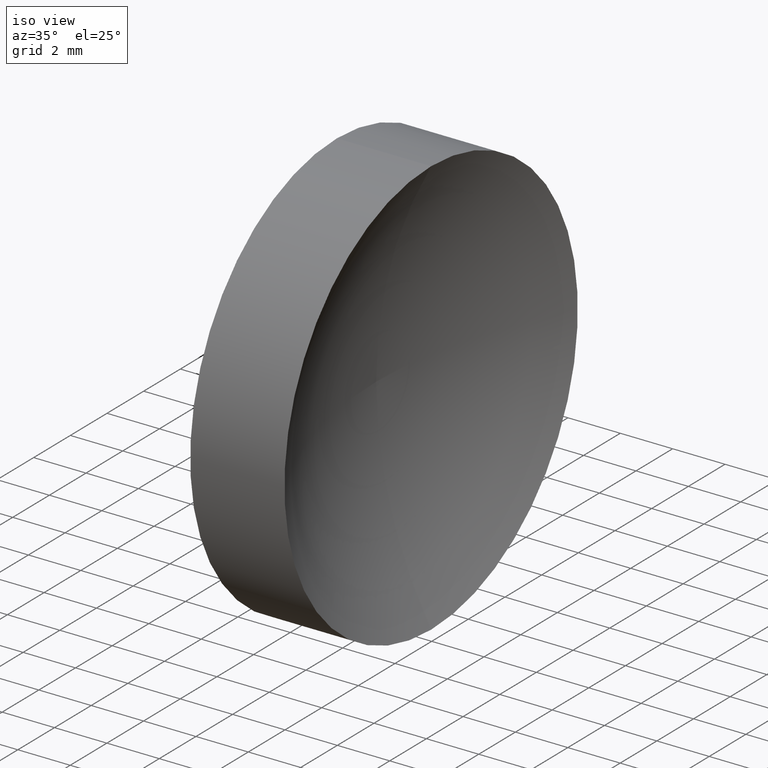
[diagram: clean part render]
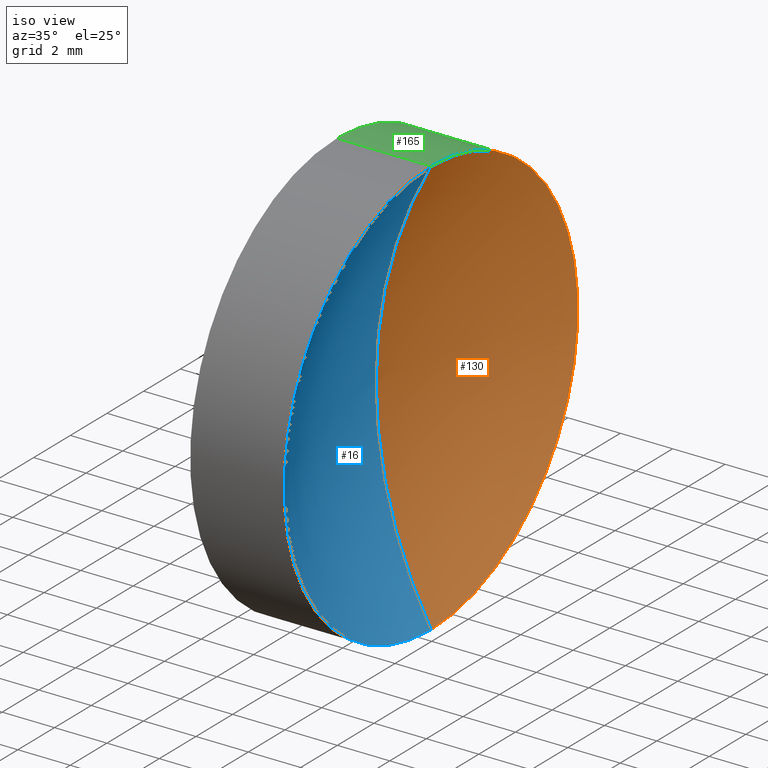
[diagram: same view with three faces highlighted in distinct colors, each labeled with its STEP entity id]
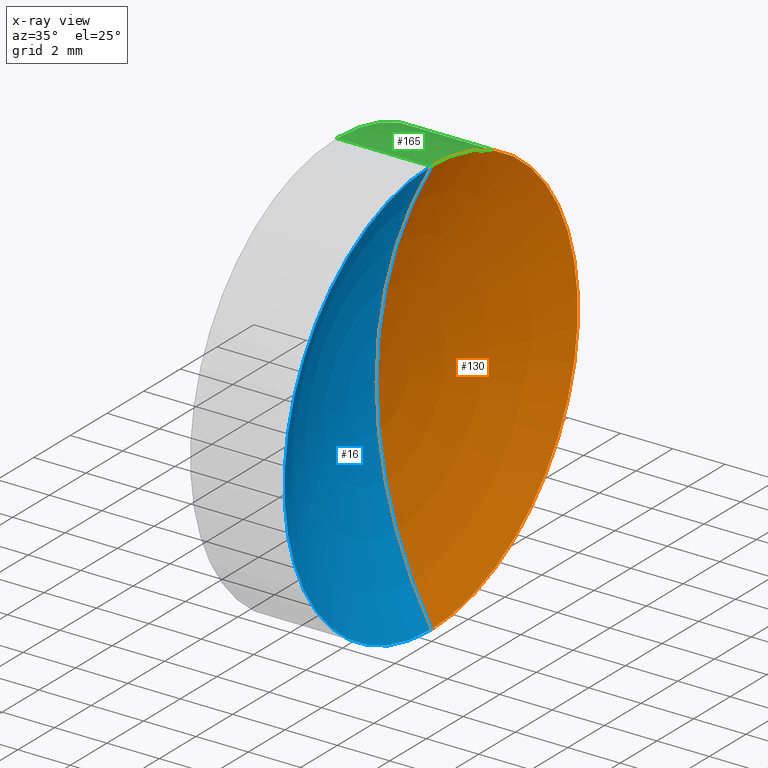
[diagram: x-ray of the same camera — body ghosted, the three highlighted faces saturated]
A machine part, iso view with three faces highlighted in distinct colors.
The next image is the same camera in x-ray (body ghosted, the three faces saturated) — at least one of them is partly hidden behind the body in this view.
Their STEP definitions:

[orange] entity #130 — the highlighted toroidal blend (fillet) surface has major radius 0.0051 mm and minor (blend) radius 16.27 mm.
#1 = CARTESIAN_POINT ( 'NONE',  ( 47.91777018609677400, 26.08904114919495900, -8.000000000000001800 ) ) ;
#2 = DIRECTION ( 'NONE',  ( 0.0000000000000000000, -2.132419761495766100E-016, 1.000000000000000000 ) ) ;
#8 = CARTESIAN_POINT ( 'NONE',  ( 47.91777018609677400, 26.08904114919495900, 8.000000000000001800 ) ) ;
#10 = DIRECTION ( 'NONE',  ( -1.000000000000000000, -0.0000000000000000000, -0.0000000000000000000 ) ) ;
#11 = EDGE_LOOP ( 'NONE', ( #97, #88, #24 ) ) ;
#24 = ORIENTED_EDGE ( 'NONE', *, *, #90, .T. ) ;
#25 = CARTESIAN_POINT ( 'NONE',  ( 47.91777018609677400, 26.08904114919495900, 0.0000000000000000000 ) ) ;
#28 = AXIS2_PLACEMENT_3D ( 'NONE', #25, #10, #161 ) ;
#30 = EDGE_CURVE ( 'NONE', #41, #118, #82, .T. ) ;
#41 = VERTEX_POINT ( 'NONE', #1 ) ;
#45 = DIRECTION ( 'NONE',  ( -1.000000000000000000, -0.0000000000000000000, -0.0000000000000000000 ) ) ;
#58 = DIRECTION ( 'NONE',  ( 0.0000000000000000000, 0.0000000000000000000, -1.000000000000000000 ) ) ;
#59 = CARTESIAN_POINT ( 'NONE',  ( 62.08794783916831500, 26.08904114919495900, 0.0000000000000000000 ) ) ;
#67 = AXIS2_PLACEMENT_3D ( 'NONE', #59, #45, #104 ) ;
#74 = AXIS2_PLACEMENT_3D ( 'NONE', #108, #156, #2 ) ;
#81 = CARTESIAN_POINT ( 'NONE',  ( 62.08794783916831500, 26.08904114919495900, 0.005066274171350304600 ) ) ;
#82 = CIRCLE ( 'NONE', #74, 16.27000000000001400 ) ;
#88 = ORIENTED_EDGE ( 'NONE', *, *, #125, .F. ) ;
#90 = EDGE_CURVE ( 'NONE', #151, #118, #112, .T. ) ;
#96 = AXIS2_PLACEMENT_3D ( 'NONE', #81, #136, #58 ) ;
#97 = ORIENTED_EDGE ( 'NONE', *, *, #30, .F. ) ;
#102 = FACE_OUTER_BOUND ( 'NONE', #11, .T. ) ;
#104 = DIRECTION ( 'NONE',  ( 0.0000000000000000000, 0.0000000000000000000, 1.000000000000000000 ) ) ;
#108 = CARTESIAN_POINT ( 'NONE',  ( 62.08794783916831500, 26.08904114919495900, -0.005066274171350304600 ) ) ;
#112 = CIRCLE ( 'NONE', #96, 16.27000000000001400 ) ;
#113 = CARTESIAN_POINT ( 'NONE',  ( 45.81794862795547400, 26.08904114919495900, 0.0000000000000000000 ) ) ;
#118 = VERTEX_POINT ( 'NONE', #113 ) ;
#125 = EDGE_CURVE ( 'NONE', #151, #41, #160, .T. ) ;
#130 = ADVANCED_FACE ( 'NONE', ( #102 ), #158, .F. ) ;
#136 = DIRECTION ( 'NONE',  ( 0.0000000000000000000, -1.000000000000000000, 0.0000000000000000000 ) ) ;
#151 = VERTEX_POINT ( 'NONE', #8 ) ;
#156 = DIRECTION ( 'NONE',  ( -0.0000000000000000000, 1.000000000000000000, 1.224646799147353200E-016 ) ) ;
#158 = TOROIDAL_SURFACE ( 'NONE', #67, 0.005066274171350304600, 16.27000000000001400 ) ;
#160 = CIRCLE ( 'NONE', #28, 8.000000000000003600 ) ;
#161 = DIRECTION ( 'NONE',  ( 0.0000000000000000000, 0.0000000000000000000, 1.000000000000000000 ) ) ;

[blue] entity #16 — the highlighted toroidal blend (fillet) surface has major radius 0.0051 mm and minor (blend) radius 16.27 mm.
#1 = CARTESIAN_POINT ( 'NONE',  ( 47.91777018609677400, 26.08904114919495900, -8.000000000000001800 ) ) ;
#2 = DIRECTION ( 'NONE',  ( 0.0000000000000000000, -2.132419761495766100E-016, 1.000000000000000000 ) ) ;
#4 = DIRECTION ( 'NONE',  ( -1.000000000000000000, -0.0000000000000000000, -0.0000000000000000000 ) ) ;
#8 = CARTESIAN_POINT ( 'NONE',  ( 47.91777018609677400, 26.08904114919495900, 8.000000000000001800 ) ) ;
#15 = ORIENTED_EDGE ( 'NONE', *, *, #23, .F. ) ;
#16 = ADVANCED_FACE ( 'NONE', ( #148 ), #17, .F. ) ;
#17 = TOROIDAL_SURFACE ( 'NONE', #44, 0.005066274171350304600, 16.27000000000001400 ) ;
#23 = EDGE_CURVE ( 'NONE', #41, #151, #46, .T. ) ;
#30 = EDGE_CURVE ( 'NONE', #41, #118, #82, .T. ) ;
#41 = VERTEX_POINT ( 'NONE', #1 ) ;
#44 = AXIS2_PLACEMENT_3D ( 'NONE', #99, #100, #140 ) ;
#46 = CIRCLE ( 'NONE', #52, 8.000000000000003600 ) ;
#52 = AXIS2_PLACEMENT_3D ( 'NONE', #68, #4, #69 ) ;
#58 = DIRECTION ( 'NONE',  ( 0.0000000000000000000, 0.0000000000000000000, -1.000000000000000000 ) ) ;
#63 = ORIENTED_EDGE ( 'NONE', *, *, #90, .F. ) ;
#68 = CARTESIAN_POINT ( 'NONE',  ( 47.91777018609677400, 26.08904114919495900, 0.0000000000000000000 ) ) ;
#69 = DIRECTION ( 'NONE',  ( 0.0000000000000000000, 0.0000000000000000000, 1.000000000000000000 ) ) ;
#74 = AXIS2_PLACEMENT_3D ( 'NONE', #108, #156, #2 ) ;
#81 = CARTESIAN_POINT ( 'NONE',  ( 62.08794783916831500, 26.08904114919495900, 0.005066274171350304600 ) ) ;
#82 = CIRCLE ( 'NONE', #74, 16.27000000000001400 ) ;
#90 = EDGE_CURVE ( 'NONE', #151, #118, #112, .T. ) ;
#96 = AXIS2_PLACEMENT_3D ( 'NONE', #81, #136, #58 ) ;
#99 = CARTESIAN_POINT ( 'NONE',  ( 62.08794783916831500, 26.08904114919495900, 0.0000000000000000000 ) ) ;
#100 = DIRECTION ( 'NONE',  ( -1.000000000000000000, -0.0000000000000000000, -0.0000000000000000000 ) ) ;
#108 = CARTESIAN_POINT ( 'NONE',  ( 62.08794783916831500, 26.08904114919495900, -0.005066274171350304600 ) ) ;
#112 = CIRCLE ( 'NONE', #96, 16.27000000000001400 ) ;
#113 = CARTESIAN_POINT ( 'NONE',  ( 45.81794862795547400, 26.08904114919495900, 0.0000000000000000000 ) ) ;
#118 = VERTEX_POINT ( 'NONE', #113 ) ;
#120 = EDGE_LOOP ( 'NONE', ( #15, #121, #63 ) ) ;
#121 = ORIENTED_EDGE ( 'NONE', *, *, #30, .T. ) ;
#136 = DIRECTION ( 'NONE',  ( 0.0000000000000000000, -1.000000000000000000, 0.0000000000000000000 ) ) ;
#140 = DIRECTION ( 'NONE',  ( 0.0000000000000000000, 0.0000000000000000000, 1.000000000000000000 ) ) ;
#148 = FACE_OUTER_BOUND ( 'NONE', #120, .T. ) ;
#151 = VERTEX_POINT ( 'NONE', #8 ) ;
#156 = DIRECTION ( 'NONE',  ( -0.0000000000000000000, 1.000000000000000000, 1.224646799147353200E-016 ) ) ;

[green] entity #165 — the highlighted cylindrical surface (partial cylindrical patch) has radius 8 mm, axis along (-1, -0, -0).
#1 = CARTESIAN_POINT ( 'NONE',  ( 47.91777018609677400, 26.08904114919495900, -8.000000000000001800 ) ) ;
#3 = DIRECTION ( 'NONE',  ( -1.000000000000000000, -0.0000000000000000000, -0.0000000000000000000 ) ) ;
#8 = CARTESIAN_POINT ( 'NONE',  ( 47.91777018609677400, 26.08904114919495900, 8.000000000000001800 ) ) ;
#10 = DIRECTION ( 'NONE',  ( -1.000000000000000000, -0.0000000000000000000, -0.0000000000000000000 ) ) ;
#19 = CARTESIAN_POINT ( 'NONE',  ( 44.31915269315436500, 26.08904114919495900, -8.000000000000003600 ) ) ;
#25 = CARTESIAN_POINT ( 'NONE',  ( 47.91777018609677400, 26.08904114919495900, 0.0000000000000000000 ) ) ;
#26 = ORIENTED_EDGE ( 'NONE', *, *, #114, .F. ) ;
#28 = AXIS2_PLACEMENT_3D ( 'NONE', #25, #10, #161 ) ;
#32 = VECTOR ( 'NONE', #122, 1000.000000000000000 ) ;
#38 = CARTESIAN_POINT ( 'NONE',  ( 44.31915269315436500, 26.08904114919495900, 8.000000000000003600 ) ) ;
#41 = VERTEX_POINT ( 'NONE', #1 ) ;
#47 = DIRECTION ( 'NONE',  ( 0.0000000000000000000, 0.0000000000000000000, 1.000000000000000000 ) ) ;
#49 = EDGE_CURVE ( 'NONE', #151, #134, #57, .T. ) ;
#54 = FACE_OUTER_BOUND ( 'NONE', #150, .T. ) ;
#56 = CARTESIAN_POINT ( 'NONE',  ( 42.44986111413682300, 26.08904114919495900, -8.000000000000003600 ) ) ;
#57 = LINE ( 'NONE', #143, #163 ) ;
#64 = DIRECTION ( 'NONE',  ( -1.000000000000000000, -0.0000000000000000000, -0.0000000000000000000 ) ) ;
#77 = ORIENTED_EDGE ( 'NONE', *, *, #49, .F. ) ;
#78 = ORIENTED_EDGE ( 'NONE', *, *, #117, .T. ) ;
#87 = CARTESIAN_POINT ( 'NONE',  ( 42.44986111413682300, 26.08904114919495900, 0.0000000000000000000 ) ) ;
#93 = ORIENTED_EDGE ( 'NONE', *, *, #125, .T. ) ;
#95 = CYLINDRICAL_SURFACE ( 'NONE', #106, 8.000000000000003600 ) ;
#106 = AXIS2_PLACEMENT_3D ( 'NONE', #87, #64, #127 ) ;
#109 = VERTEX_POINT ( 'NONE', #19 ) ;
#114 = EDGE_CURVE ( 'NONE', #134, #109, #153, .T. ) ;
#117 = EDGE_CURVE ( 'NONE', #41, #109, #164, .T. ) ;
#122 = DIRECTION ( 'NONE',  ( -1.000000000000000000, -0.0000000000000000000, -0.0000000000000000000 ) ) ;
#125 = EDGE_CURVE ( 'NONE', #151, #41, #160, .T. ) ;
#127 = DIRECTION ( 'NONE',  ( 0.0000000000000000000, 0.0000000000000000000, 1.000000000000000000 ) ) ;
#134 = VERTEX_POINT ( 'NONE', #38 ) ;
#138 = DIRECTION ( 'NONE',  ( -1.000000000000000000, -0.0000000000000000000, -0.0000000000000000000 ) ) ;
#143 = CARTESIAN_POINT ( 'NONE',  ( 42.44986111413682300, 26.08904114919495900, 8.000000000000003600 ) ) ;
#146 = CARTESIAN_POINT ( 'NONE',  ( 44.31915269315436500, 26.08904114919495900, 0.0000000000000000000 ) ) ;
#150 = EDGE_LOOP ( 'NONE', ( #93, #78, #26, #77 ) ) ;
#151 = VERTEX_POINT ( 'NONE', #8 ) ;
#152 = AXIS2_PLACEMENT_3D ( 'NONE', #146, #138, #47 ) ;
#153 = CIRCLE ( 'NONE', #152, 8.000000000000003600 ) ;
#160 = CIRCLE ( 'NONE', #28, 8.000000000000003600 ) ;
#161 = DIRECTION ( 'NONE',  ( 0.0000000000000000000, 0.0000000000000000000, 1.000000000000000000 ) ) ;
#163 = VECTOR ( 'NONE', #3, 1000.000000000000000 ) ;
#164 = LINE ( 'NONE', #56, #32 ) ;
#165 = ADVANCED_FACE ( 'NONE', ( #54 ), #95, .T. ) ;